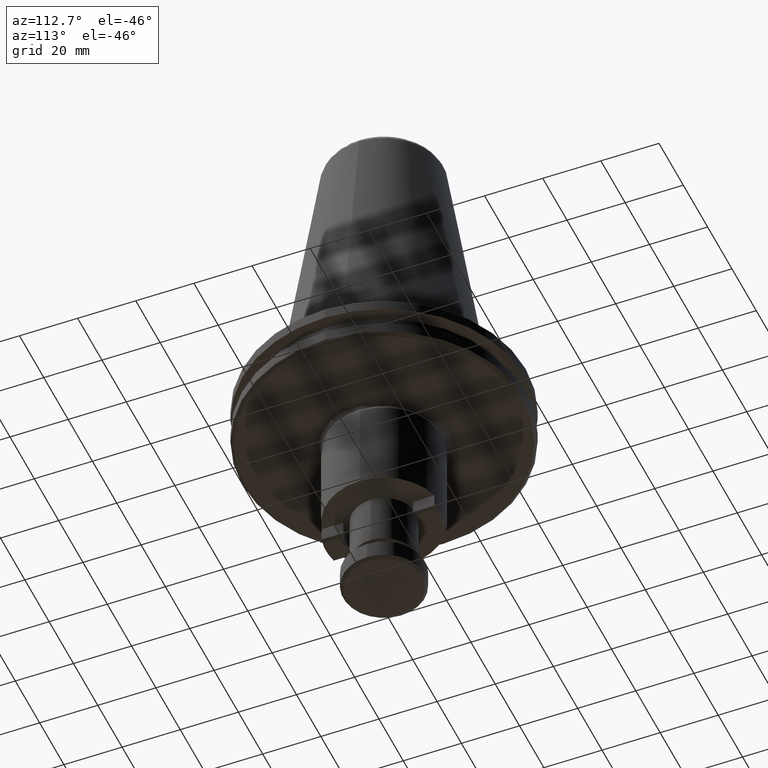
[diagram: clean part render]
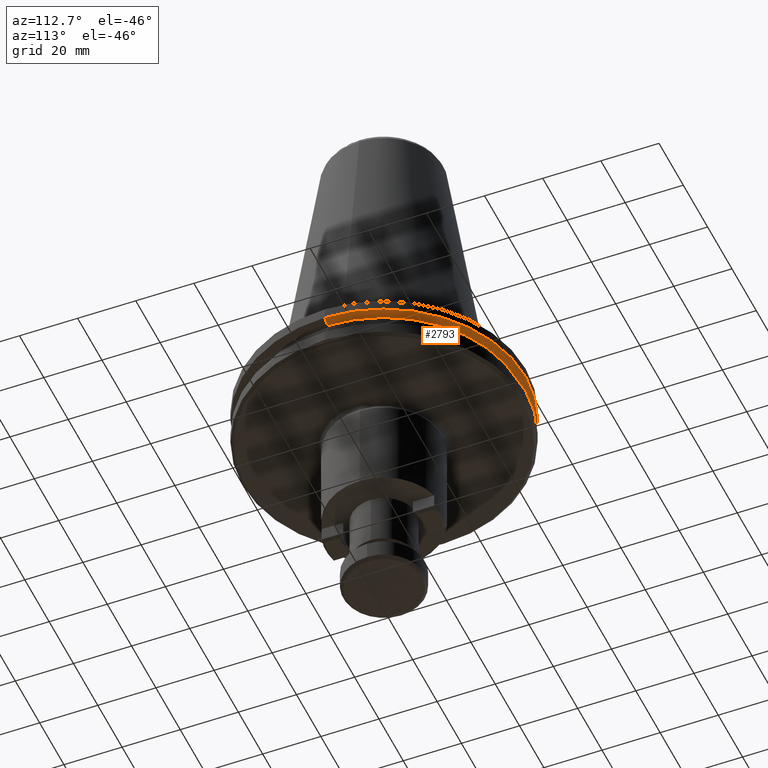
[diagram: same view with one face highlighted and labeled with its STEP entity id]
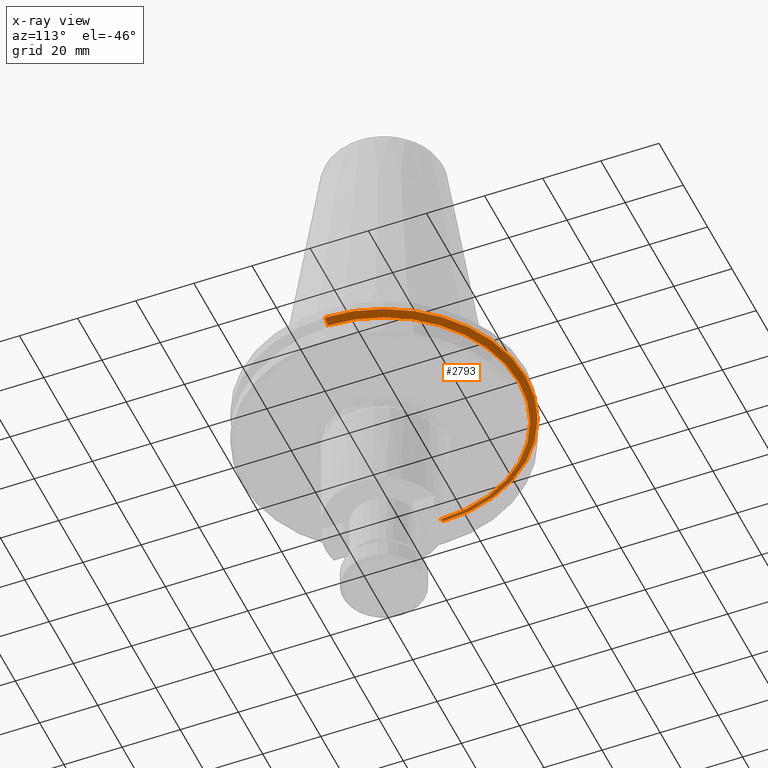
[diagram: x-ray of the same camera — body ghosted, the highlighted face saturated]
A machine part, auxiliary view. The second image highlights one B-rep face of the part: STEP entity #2793.
The next image is the same camera in x-ray: the body ghosted, the highlighted face saturated — about 1% of this face is hidden behind the body in this view.
In plain terms, the highlighted conical surface has half-angle 60 deg.
Its self-contained STEP definition (entity closure, byte-faithful):
#43 = EDGE_CURVE ( 'NONE', #1658, #1694, #1149, .T. ) ;
#122 = DIRECTION ( 'NONE',  ( 1.000000000000000000, 0.0000000000000000000, 0.0000000000000000000 ) ) ;
#236 = ORIENTED_EDGE ( 'NONE', *, *, #1190, .F. ) ;
#279 = AXIS2_PLACEMENT_3D ( 'NONE', #482, #476, #469 ) ;
#335 = VERTEX_POINT ( 'NONE', #1169 ) ;
#341 = EDGE_CURVE ( 'NONE', #1694, #335, #831, .T. ) ;
#469 = DIRECTION ( 'NONE',  ( 1.000000000000000000, 0.0000000000000000000, 0.0000000000000000000 ) ) ;
#476 = DIRECTION ( 'NONE',  ( -0.0000000000000000000, -0.0000000000000000000, -1.000000000000000000 ) ) ;
#482 = CARTESIAN_POINT ( 'NONE',  ( 89.44000914255849500, 102.4230254990840100, 90.79902261484829800 ) ) ;
#542 = AXIS2_PLACEMENT_3D ( 'NONE', #625, #635, #644 ) ;
#590 = AXIS2_PLACEMENT_3D ( 'NONE', #2075, #1841, #122 ) ;
#625 = CARTESIAN_POINT ( 'NONE',  ( 89.44000914255849500, 102.4230254990840100, 90.79902261484829800 ) ) ;
#635 = DIRECTION ( 'NONE',  ( 0.0000000000000000000, 0.0000000000000000000, 1.000000000000000000 ) ) ;
#644 = DIRECTION ( 'NONE',  ( 1.000000000000000000, 0.0000000000000000000, 0.0000000000000000000 ) ) ;
#763 = ORIENTED_EDGE ( 'NONE', *, *, #341, .T. ) ;
#789 = ORIENTED_EDGE ( 'NONE', *, *, #2097, .T. ) ;
#831 = LINE ( 'NONE', #1047, #1740 ) ;
#855 = LINE ( 'NONE', #2122, #1421 ) ;
#942 = CARTESIAN_POINT ( 'NONE',  ( 43.06741387855849000, 102.4230254990840100, 89.42642735088047300 ) ) ;
#1040 = DIRECTION ( 'NONE',  ( -0.8660254038321199000, 1.060575238783299600E-016, 0.4999999999174136700 ) ) ;
#1047 = CARTESIAN_POINT ( 'NONE',  ( 40.69000914261425100, 102.4230254990840100, 90.79902261484829800 ) ) ;
#1078 = CARTESIAN_POINT ( 'NONE',  ( 138.1900091425027300, 102.4230254990840100, 90.79902261484829800 ) ) ;
#1149 = CIRCLE ( 'NONE', #590, 46.37259526400001900 ) ;
#1169 = CARTESIAN_POINT ( 'NONE',  ( 40.69000914261425100, 102.4230254990840100, 90.79902261484829800 ) ) ;
#1190 = EDGE_CURVE ( 'NONE', #1658, #2351, #855, .T. ) ;
#1362 = CONICAL_SURFACE ( 'NONE', #542, 48.74999999994424400, 1.047197551291960200 ) ;
#1421 = VECTOR ( 'NONE', #1589, 1000.000000000000000 ) ;
#1565 = CARTESIAN_POINT ( 'NONE',  ( 135.8126044065585100, 102.4230254990840100, 89.42642735088047300 ) ) ;
#1589 = DIRECTION ( 'NONE',  ( 0.8660254038321199000, 0.0000000000000000000, 0.4999999999174136700 ) ) ;
#1636 = FACE_OUTER_BOUND ( 'NONE', #2614, .T. ) ;
#1658 = VERTEX_POINT ( 'NONE', #1565 ) ;
#1669 = CIRCLE ( 'NONE', #279, 48.74999999994424400 ) ;
#1694 = VERTEX_POINT ( 'NONE', #942 ) ;
#1740 = VECTOR ( 'NONE', #1040, 1000.000000000000000 ) ;
#1841 = DIRECTION ( 'NONE',  ( 0.0000000000000000000, 0.0000000000000000000, 1.000000000000000000 ) ) ;
#2075 = CARTESIAN_POINT ( 'NONE',  ( 89.44000914255849500, 102.4230254990840100, 89.42642735088047300 ) ) ;
#2097 = EDGE_CURVE ( 'NONE', #335, #2351, #1669, .T. ) ;
#2122 = CARTESIAN_POINT ( 'NONE',  ( 138.1900091425027300, 102.4230254990840100, 90.79902261484829800 ) ) ;
#2223 = ORIENTED_EDGE ( 'NONE', *, *, #43, .T. ) ;
#2351 = VERTEX_POINT ( 'NONE', #1078 ) ;
#2614 = EDGE_LOOP ( 'NONE', ( #2223, #763, #789, #236 ) ) ;
#2793 = ADVANCED_FACE ( 'NONE', ( #1636 ), #1362, .T. ) ;